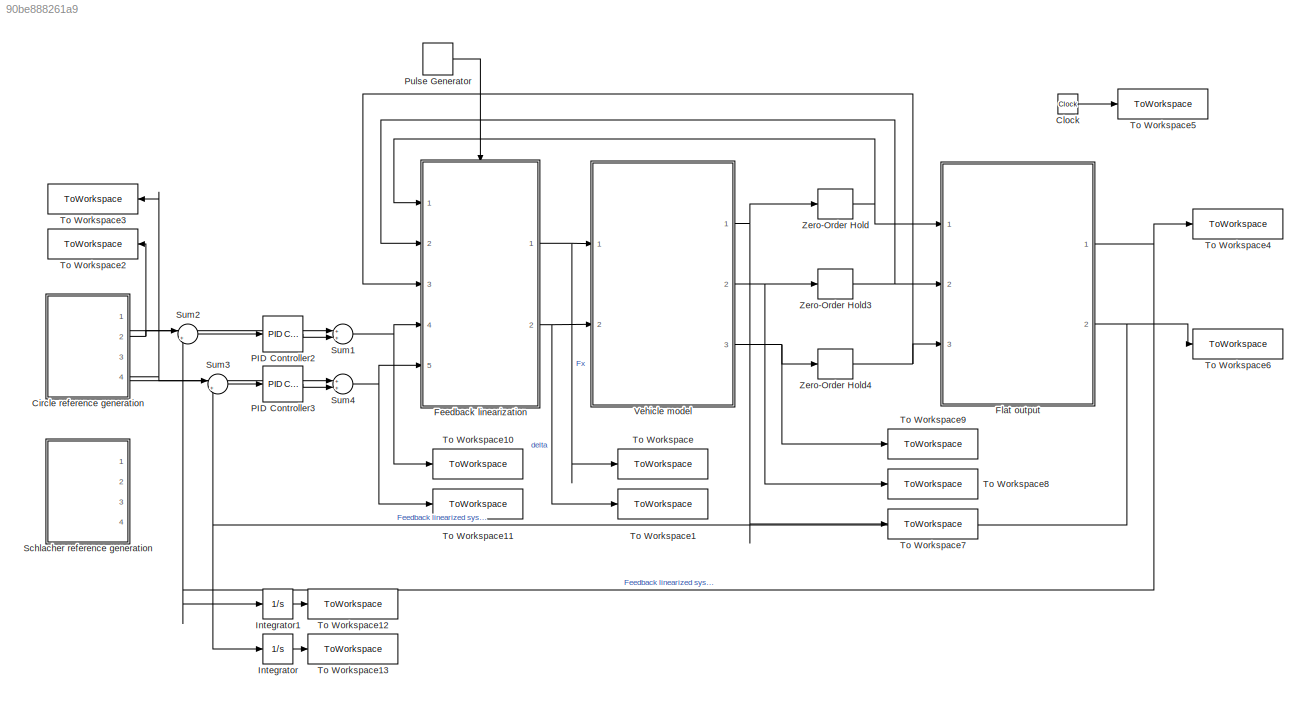
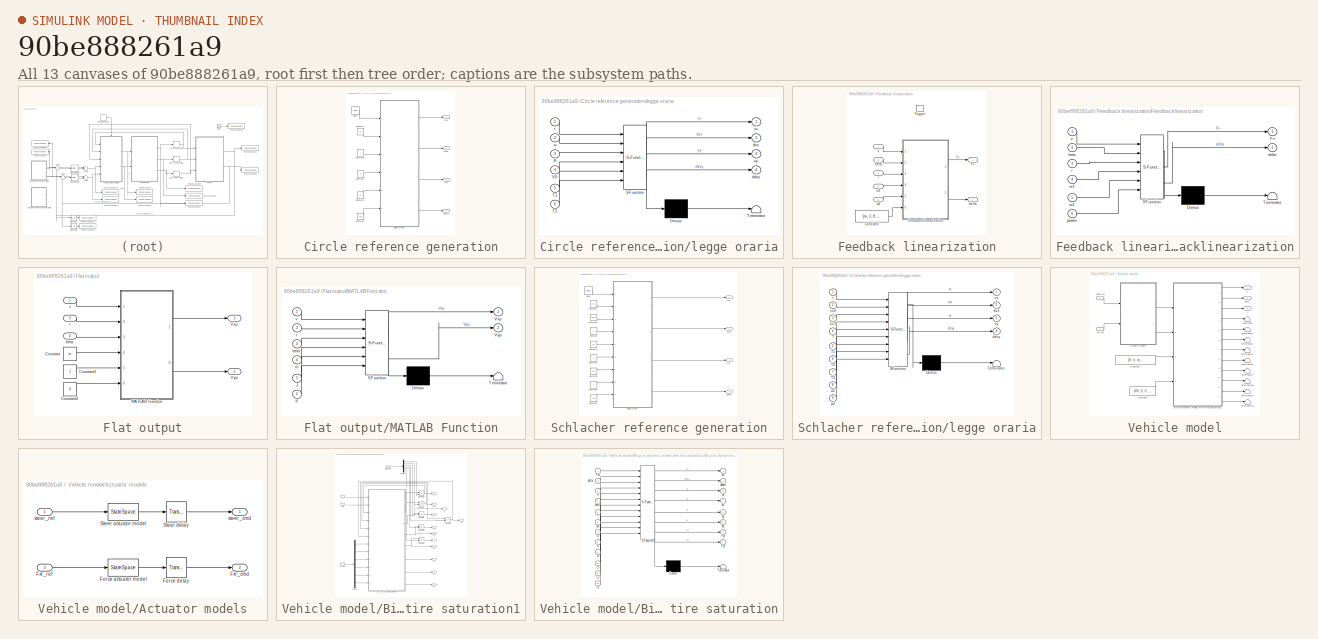
[diagram: thumbnail index - all 13 canvases of the model, root first then tree order]
MODEL slx_90be888261a9
KIND model
CONFIG AbsTol = auto
CONFIG EnableMultiTasking = off
CONFIG FixedStep = 0.001
CONFIG MaxStep = auto
CONFIG MinStep = auto
CONFIG PostLoadFcn = clear all;\n\nlf  = 0.1368;\nlr  = 0.1232;\nm  = 1.9;\nmu = 0.385;\nCf = 50.13;\nCr = 122.05;\nJ = 0.029;\n\nV0 = 1;\nVxp0 = 1;\nVxpf = 5;\nVyp0 = 0;\nVypf = 1;\n\nKp_w1 = 10;\nKi_w1 = 10;\nKp_w2 = 75;\nKi_w2 = 15;\nKd_w2 = 125;\nN_w2 = 100;\n\nTs_sens = 1e-2;\nTs_cont = 1e-3;
CONFIG RelTol = 1e-3
CONFIG SampleTimeConstraint = Unconstrained
CONFIG SolverName = VariableStepAuto
CONFIG StartTime = 0.0
CONFIG StopTime = 50
BLOCK [SubSystem] Circle reference generation
  Ports = [0, 4]
  RequestExecContextInheritance = off
BLOCK [Clock] Circle reference generation/Clock
BLOCK [Constant] Circle reference generation/Constant1
  Value = 5
BLOCK [Constant] Circle reference generation/Constant2
  Value = 50
BLOCK [Constant] Circle reference generation/Constant3
  Value = V0
BLOCK [Constant] Circle reference generation/Constant4
  Value = 0.1
BLOCK [Constant] Circle reference generation/Constant5
BLOCK [Outport] Circle reference generation/ddvyp
  Port = 3
BLOCK [Outport] Circle reference generation/dvxp
BLOCK [SubSystem] Circle reference generation/legge oraria
  ErrorFcn = Stateflow.Translate.translate
  PermitHierarchicalResolution = ExplicitOnly
  Ports = [6, 4]
  RequestExecContextInheritance = off
  SFBlockType = MATLAB Function
  TreatAsAtomicUnit = on
BLOCK [Demux] Circle reference generation/legge oraria/ Demux 
  Outputs = 1
  Ports = [1, 1]
BLOCK [S-Function] Circle reference generation/legge oraria/ SFunction 
  EnableBusSupport = on
  FunctionName = sf_sfun
  PortCounts = [6 5]
  Ports = [6, 5]
  SFcnIsStateOwnerBlock = off
  SFunctionDeploymentMode = off
  Tag = Stateflow S-Function 5
BLOCK [Terminator] Circle reference generation/legge oraria/ Terminator 
BLOCK [Inport] Circle reference generation/legge oraria/R
  Port = 3
BLOCK [Inport] Circle reference generation/legge oraria/T1
  Port = 5
BLOCK [Inport] Circle reference generation/legge oraria/T2
  Port = 6
BLOCK [Inport] Circle reference generation/legge oraria/V0
  Port = 4
BLOCK [Outport] Circle reference generation/legge oraria/ddvy
  Port = 4
BLOCK [Outport] Circle reference generation/legge oraria/dvx
  Port = 2
BLOCK [Inport] Circle reference generation/legge oraria/t
BLOCK [Outport] Circle reference generation/legge oraria/vx
BLOCK [Outport] Circle reference generation/legge oraria/vy
  Port = 3
BLOCK [Inport] Circle reference generation/legge oraria/w
  Port = 2
BLOCK [Outport] Circle reference generation/vxp
  Port = 2
BLOCK [Outport] Circle reference generation/vyp
  Port = 4
BLOCK [Clock] Clock
BLOCK [SubSystem] Feedback linearization
  Ports = [5, 2, 0, 1]
  RequestExecContextInheritance = off
  TreatAsAtomicUnit = on
BLOCK [Constant] Feedback linearization/Constant
  Value = [m, J, lf, lr, Cf, Cr]
BLOCK [SubSystem] Feedback linearization/Feedbacklinearization
  ErrorFcn = Stateflow.Translate.translate
  PermitHierarchicalResolution = ExplicitOnly
  Ports = [6, 2]
  RequestExecContextInheritance = off
  SFBlockType = MATLAB Function
  TreatAsAtomicUnit = on
BLOCK [Demux] Feedback linearization/Feedbacklinearization/ Demux 
  Outputs = 1
  Ports = [1, 1]
BLOCK [S-Function] Feedback linearization/Feedbacklinearization/ SFunction 
  EnableBusSupport = on
  FunctionName = sf_sfun
  PortCounts = [6 3]
  Ports = [6, 3]
  SFcnIsStateOwnerBlock = off
  SFunctionDeploymentMode = off
  Tag = Stateflow S-Function 2
BLOCK [Terminator] Feedback linearization/Feedbacklinearization/ Terminator 
BLOCK [Outport] Feedback linearization/Feedbacklinearization/Fx
BLOCK [Inport] Feedback linearization/Feedbacklinearization/beta
  Port = 2
BLOCK [Outport] Feedback linearization/Feedbacklinearization/delta
  Port = 2
BLOCK [Inport] Feedback linearization/Feedbacklinearization/param
  Port = 6
BLOCK [Inport] Feedback linearization/Feedbacklinearization/r
  Port = 3
BLOCK [Inport] Feedback linearization/Feedbacklinearization/v
BLOCK [Inport] Feedback linearization/Feedbacklinearization/w1
  Port = 4
BLOCK [Inport] Feedback linearization/Feedbacklinearization/w2
  Port = 5
BLOCK [Outport] Feedback linearization/Fx
BLOCK [TriggerPort] Feedback linearization/Trigger
  Ports = []
  StatesWhenEnabling = held
  VariantControl = (inherit)
BLOCK [Inport] Feedback linearization/beta
  Port = 2
BLOCK [Outport] Feedback linearization/delta
  Port = 2
BLOCK [Inport] Feedback linearization/r
  Port = 3
BLOCK [Inport] Feedback linearization/v
BLOCK [Inport] Feedback linearization/w1
  Port = 4
BLOCK [Inport] Feedback linearization/w2
  Port = 5
BLOCK [SubSystem] Flat output
  Ports = [3, 2]
  RequestExecContextInheritance = off
BLOCK [Constant] Flat output/Constant
  Value = m
BLOCK [Constant] Flat output/Constant1
  Value = J
BLOCK [Constant] Flat output/Constant2
  Value = lf
BLOCK [SubSystem] Flat output/MATLAB Function
  ErrorFcn = Stateflow.Translate.translate
  PermitHierarchicalResolution = ExplicitOnly
  Ports = [6, 2]
  RequestExecContextInheritance = off
  SFBlockType = MATLAB Function
  TreatAsAtomicUnit = on
BLOCK [Demux] Flat output/MATLAB Function/ Demux 
  Outputs = 1
  Ports = [1, 1]
BLOCK [S-Function] Flat output/MATLAB Function/ SFunction 
  EnableBusSupport = on
  FunctionName = sf_sfun
  PortCounts = [6 3]
  Ports = [6, 3]
  SFcnIsStateOwnerBlock = off
  SFunctionDeploymentMode = off
  Tag = Stateflow S-Function 4
BLOCK [Terminator] Flat output/MATLAB Function/ Terminator 
BLOCK [Inport] Flat output/MATLAB Function/J
  Port = 5
BLOCK [Outport] Flat output/MATLAB Function/Vxp
BLOCK [Outport] Flat output/MATLAB Function/Vyp
  Port = 2
BLOCK [Inport] Flat output/MATLAB Function/beta
  Port = 3
BLOCK [Inport] Flat output/MATLAB Function/lf
  Port = 6
BLOCK [Inport] Flat output/MATLAB Function/m
  Port = 4
BLOCK [Inport] Flat output/MATLAB Function/r
  Port = 2
BLOCK [Inport] Flat output/MATLAB Function/v
BLOCK [Outport] Flat output/Vxp
BLOCK [Outport] Flat output/Vyp
  Port = 2
BLOCK [Inport] Flat output/beta
  Port = 2
BLOCK [Inport] Flat output/r
  Port = 3
BLOCK [Inport] Flat output/v
BLOCK [Integrator] Integrator
  Ports = [1, 1]
BLOCK [Integrator] Integrator1
  Ports = [1, 1]
BLOCK [Reference] PID Controller2  REF=pid_lib/PID Controller
  Ports = [1, 1]
  SourceBlock = pid_lib/PID Controller
  SourceProductBaseCode = SL
  SourceType = PID 1dof
BLOCK [Reference] PID Controller3  REF=pid_lib/PID Controller
  Ports = [1, 1]
  SourceBlock = pid_lib/PID Controller
  SourceProductBaseCode = SL
  SourceType = PID 1dof
BLOCK [DiscretePulseGenerator] Pulse Generator
  Period = Ts_cont
  Ports = [0, 1]
  PulseType = Time based
  PulseWidth = 50
BLOCK [SubSystem] Schlacher reference generation
  Ports = [0, 4]
  RequestExecContextInheritance = off
BLOCK [Clock] Schlacher reference generation/Clock
BLOCK [Constant] Schlacher reference generation/Constant
  Value = 5
BLOCK [Constant] Schlacher reference generation/Constant1
  Value = 1.5
BLOCK [Constant] Schlacher reference generation/Constant2
  Value = 3
BLOCK [Constant] Schlacher reference generation/Constant3
  Value = 4.5
BLOCK [Constant] Schlacher reference generation/Constant4
  Value = V0
BLOCK [Constant] Schlacher reference generation/Constant5
  Value = V0+2
BLOCK [Constant] Schlacher reference generation/Constant6
  Value = 2
BLOCK [Constant] Schlacher reference generation/Constant7
  Value = -2.5
BLOCK [Outport] Schlacher reference generation/ddvyp
  Port = 3
BLOCK [Outport] Schlacher reference generation/dvxp
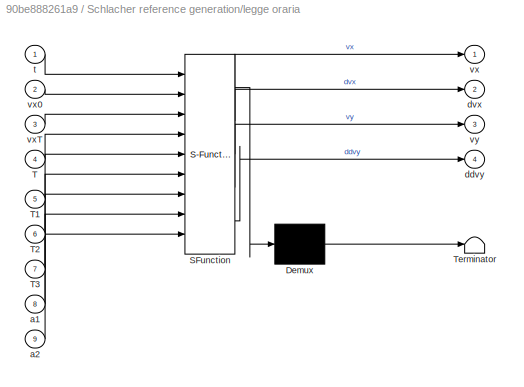
BLOCK [SubSystem] Schlacher reference generation/legge oraria
  ErrorFcn = Stateflow.Translate.translate
  PermitHierarchicalResolution = ExplicitOnly
  Ports = [9, 4]
  RequestExecContextInheritance = off
  SFBlockType = MATLAB Function
  TreatAsAtomicUnit = on
BLOCK [Demux] Schlacher reference generation/legge oraria/ Demux 
  Outputs = 1
  Ports = [1, 1]
BLOCK [S-Function] Schlacher reference generation/legge oraria/ SFunction 
  EnableBusSupport = on
  FunctionName = sf_sfun
  PortCounts = [9 5]
  Ports = [9, 5]
  SFcnIsStateOwnerBlock = off
  SFunctionDeploymentMode = off
  Tag = Stateflow S-Function 3
BLOCK [Terminator] Schlacher reference generation/legge oraria/ Terminator 
BLOCK [Inport] Schlacher reference generation/legge oraria/T
  Port = 4
BLOCK [Inport] Schlacher reference generation/legge oraria/T1
  Port = 5
BLOCK [Inport] Schlacher reference generation/legge oraria/T2
  Port = 6
BLOCK [Inport] Schlacher reference generation/legge oraria/T3
  Port = 7
BLOCK [Inport] Schlacher reference generation/legge oraria/a1
  Port = 8
BLOCK [Inport] Schlacher reference generation/legge oraria/a2
  Port = 9
BLOCK [Outport] Schlacher reference generation/legge oraria/ddvy
  Port = 4
BLOCK [Outport] Schlacher reference generation/legge oraria/dvx
  Port = 2
BLOCK [Inport] Schlacher reference generation/legge oraria/t
BLOCK [Outport] Schlacher reference generation/legge oraria/vx
BLOCK [Inport] Schlacher reference generation/legge oraria/vx0
  Port = 2
BLOCK [Inport] Schlacher reference generation/legge oraria/vxT
  Port = 3
BLOCK [Outport] Schlacher reference generation/legge oraria/vy
  Port = 3
BLOCK [Outport] Schlacher reference generation/vxp
  Port = 2
BLOCK [Outport] Schlacher reference generation/vyp
  Port = 4
BLOCK [Sum] Sum1
  Inputs = ++|
  Ports = [2, 1]
BLOCK [Sum] Sum2
  Inputs = |+-
  Ports = [2, 1]
BLOCK [Sum] Sum3
  Inputs = |+-
  Ports = [2, 1]
BLOCK [Sum] Sum4
  Inputs = ++|
  Ports = [2, 1]
BLOCK [ToWorkspace] To Workspace
  FixptAsFi = on
  MaxDataPoints = inf
  Ports = [1]
  SampleTime = 0.001
  Save2DSignal = 2-D array (concatenate along first dimension)
  VariableName = Fx
BLOCK [ToWorkspace] To Workspace1
  FixptAsFi = on
  MaxDataPoints = inf
  Ports = [1]
  SampleTime = 0.001
  Save2DSignal = 2-D array (concatenate along first dimension)
  VariableName = delta
BLOCK [ToWorkspace] To Workspace10
  FixptAsFi = on
  MaxDataPoints = inf
  Ports = [1]
  SampleTime = 0.001
  Save2DSignal = 2-D array (concatenate along first dimension)
  VariableName = w1
BLOCK [ToWorkspace] To Workspace11
  FixptAsFi = on
  MaxDataPoints = inf
  Ports = [1]
  SampleTime = 0.001
  Save2DSignal = 2-D array (concatenate along first dimension)
  VariableName = w2
BLOCK [ToWorkspace] To Workspace12
  FixptAsFi = on
  MaxDataPoints = inf
  Ports = [1]
  SampleTime = 0.001
  Save2DSignal = 2-D array (concatenate along first dimension)
  VariableName = xp
BLOCK [ToWorkspace] To Workspace13
  FixptAsFi = on
  MaxDataPoints = inf
  Ports = [1]
  SampleTime = 0.001
  Save2DSignal = 2-D array (concatenate along first dimension)
  VariableName = yp
BLOCK [ToWorkspace] To Workspace2
  FixptAsFi = on
  MaxDataPoints = inf
  Ports = [1]
  SampleTime = 0.001
  Save2DSignal = 2-D array (concatenate along first dimension)
  VariableName = Vxp_ref
BLOCK [ToWorkspace] To Workspace3
  FixptAsFi = on
  MaxDataPoints = inf
  Ports = [1]
  SampleTime = 0.001
  Save2DSignal = 2-D array (concatenate along first dimension)
  VariableName = Vyp_ref
BLOCK [ToWorkspace] To Workspace4
  FixptAsFi = on
  MaxDataPoints = inf
  Ports = [1]
  SampleTime = 0.001
  Save2DSignal = 2-D array (concatenate along first dimension)
  VariableName = Vxp
BLOCK [ToWorkspace] To Workspace5
  FixptAsFi = on
  MaxDataPoints = inf
  Ports = [1]
  SampleTime = 0.001
  Save2DSignal = 2-D array (concatenate along first dimension)
  VariableName = t
BLOCK [ToWorkspace] To Workspace6
  FixptAsFi = on
  MaxDataPoints = inf
  Ports = [1]
  SampleTime = 0.001
  Save2DSignal = 2-D array (concatenate along first dimension)
  VariableName = Vyp
BLOCK [ToWorkspace] To Workspace7
  FixptAsFi = on
  MaxDataPoints = inf
  Ports = [1]
  SampleTime = 0.001
  Save2DSignal = 2-D array (concatenate along first dimension)
  VariableName = v
BLOCK [ToWorkspace] To Workspace8
  FixptAsFi = on
  MaxDataPoints = inf
  Ports = [1]
  SampleTime = 0.001
  Save2DSignal = 2-D array (concatenate along first dimension)
  VariableName = beta
BLOCK [ToWorkspace] To Workspace9
  FixptAsFi = on
  MaxDataPoints = inf
  Ports = [1]
  SampleTime = 0.001
  Save2DSignal = 2-D array (concatenate along first dimension)
  VariableName = r
BLOCK [SubSystem] Vehicle model
  Ports = [2, 3]
  RequestExecContextInheritance = off
BLOCK [SubSystem] Vehicle model/Actuator models
  Ports = [2, 2]
  RequestExecContextInheritance = off
BLOCK [StateSpace] Vehicle model/Actuator models/Force actuator model
  A = [0, 1; -wn_force^2, -2*csi_force*wn_force]
  B = [0; mu_force*wn_force^2]
  C = [1, 0]
  D = 0
  InitialCondition = [force_initial, 0]
  Ports = [1, 1]
BLOCK [TransportDelay] Vehicle model/Actuator models/Force delay
  DelayTime = tau_force
  InitialOutput = force_initial
  Ports = [1, 1]
BLOCK [Outport] Vehicle model/Actuator models/Fxr_cmd
  Port = 2
BLOCK [Inport] Vehicle model/Actuator models/Fxr_ref
  Port = 2
BLOCK [StateSpace] Vehicle model/Actuator models/Steer actuator model
  A = [0, 1; -wn_steer^2, -2*csi_steer*wn_steer]
  B = [0; mu_steer*wn_steer^2]
  C = [1, 0]
  D = 0
  InitialCondition = [steer_initial, 0]
  Ports = [1, 1]
BLOCK [TransportDelay] Vehicle model/Actuator models/Steer delay
  DelayTime = tau_steer
  InitialOutput = steer_initial
  Ports = [1, 1]
BLOCK [Outport] Vehicle model/Actuator models/steer_cmd
BLOCK [Inport] Vehicle model/Actuator models/steer_ref
BLOCK [SubSystem] Vehicle model/Bicycle dynamic model with tire saturation1
  Ports = [4, 12]
  RequestExecContextInheritance = off
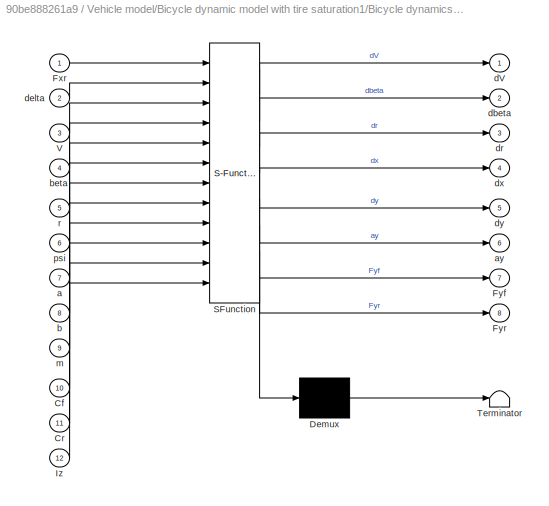
BLOCK [SubSystem] Vehicle model/Bicycle dynamic model with tire saturation1/Bicycle dynamics tire saturation
  ErrorFcn = Stateflow.Translate.translate
  PermitHierarchicalResolution = ExplicitOnly
  Ports = [12, 8]
  RequestExecContextInheritance = off
  SFBlockType = MATLAB Function
  TreatAsAtomicUnit = on
BLOCK [Demux] Vehicle model/Bicycle dynamic model with tire saturation1/Bicycle dynamics tire saturation/ Demux 
  Outputs = 1
  Ports = [1, 1]
BLOCK [S-Function] Vehicle model/Bicycle dynamic model with tire saturation1/Bicycle dynamics tire saturation/ SFunction 
  EnableBusSupport = on
  FunctionName = sf_sfun
  PortCounts = [12 9]
  Ports = [12, 9]
  SFcnIsStateOwnerBlock = off
  SFunctionDeploymentMode = off
  Tag = Stateflow S-Function 1
BLOCK [Terminator] Vehicle model/Bicycle dynamic model with tire saturation1/Bicycle dynamics tire saturation/ Terminator 
BLOCK [Inport] Vehicle model/Bicycle dynamic model with tire saturation1/Bicycle dynamics tire saturation/Cf
  Port = 10
BLOCK [Inport] Vehicle model/Bicycle dynamic model with tire saturation1/Bicycle dynamics tire saturation/Cr
  Port = 11
BLOCK [Inport] Vehicle model/Bicycle dynamic model with tire saturation1/Bicycle dynamics tire saturation/Fxr
BLOCK [Outport] Vehicle model/Bicycle dynamic model with tire saturation1/Bicycle dynamics tire saturation/Fyf
  Port = 7
BLOCK [Outport] Vehicle model/Bicycle dynamic model with tire saturation1/Bicycle dynamics tire saturation/Fyr
  Port = 8
BLOCK [Inport] Vehicle model/Bicycle dynamic model with tire saturation1/Bicycle dynamics tire saturation/Iz
  Port = 12
BLOCK [Inport] Vehicle model/Bicycle dynamic model with tire saturation1/Bicycle dynamics tire saturation/V
  Port = 3
BLOCK [Inport] Vehicle model/Bicycle dynamic model with tire saturation1/Bicycle dynamics tire saturation/a
  Port = 7
BLOCK [Outport] Vehicle model/Bicycle dynamic model with tire saturation1/Bicycle dynamics tire saturation/ay
  Port = 6
BLOCK [Inport] Vehicle model/Bicycle dynamic model with tire saturation1/Bicycle dynamics tire saturation/b
  Port = 8
BLOCK [Inport] Vehicle model/Bicycle dynamic model with tire saturation1/Bicycle dynamics tire saturation/beta
  Port = 4
BLOCK [Outport] Vehicle model/Bicycle dynamic model with tire saturation1/Bicycle dynamics tire saturation/dV
BLOCK [Outport] Vehicle model/Bicycle dynamic model with tire saturation1/Bicycle dynamics tire saturation/dbeta
  Port = 2
BLOCK [Inport] Vehicle model/Bicycle dynamic model with tire saturation1/Bicycle dynamics tire saturation/delta
  Port = 2
BLOCK [Outport] Vehicle model/Bicycle dynamic model with tire saturation1/Bicycle dynamics tire saturation/dr
  Port = 3
  VectorParamsAs1DForOutWhenUnconnected = off
BLOCK [Outport] Vehicle model/Bicycle dynamic model with tire saturation1/Bicycle dynamics tire saturation/dx
  Port = 4
BLOCK [Outport] Vehicle model/Bicycle dynamic model with tire saturation1/Bicycle dynamics tire saturation/dy
  Port = 5
BLOCK [Inport] Vehicle model/Bicycle dynamic model with tire saturation1/Bicycle dynamics tire saturation/m
  Port = 9
BLOCK [Inport] Vehicle model/Bicycle dynamic model with tire saturation1/Bicycle dynamics tire saturation/psi
  Port = 6
BLOCK [Inport] Vehicle model/Bicycle dynamic model with tire saturation1/Bicycle dynamics tire saturation/r
  Port = 5
BLOCK [Demux] Vehicle model/Bicycle dynamic model with tire saturation1/Demux
  Outputs = 6
  Ports = [1, 6]
BLOCK [Demux] Vehicle model/Bicycle dynamic model with tire saturation1/Demux2
  Outputs = 6
  Ports = [1, 6]
BLOCK [Inport] Vehicle model/Bicycle dynamic model with tire saturation1/Fxr
  Port = 2
BLOCK [Outport] Vehicle model/Bicycle dynamic model with tire saturation1/Fyf
  Port = 8
BLOCK [Outport] Vehicle model/Bicycle dynamic model with tire saturation1/Fyr
  Port = 9
BLOCK [Integrator] Vehicle model/Bicycle dynamic model with tire saturation1/Integrator
  InitialConditionSource = external
  Ports = [2, 1]
BLOCK [Integrator] Vehicle model/Bicycle dynamic model with tire saturation1/Integrator1
  InitialConditionSource = external
  Ports = [2, 1]
BLOCK [Integrator] Vehicle model/Bicycle dynamic model with tire saturation1/Integrator2
  InitialConditionSource = external
  Ports = [2, 1]
BLOCK [Integrator] Vehicle model/Bicycle dynamic model with tire saturation1/Integrator3
  InitialConditionSource = external
  Ports = [2, 1]
BLOCK [Integrator] Vehicle model/Bicycle dynamic model with tire saturation1/Integrator4
  InitialConditionSource = external
  Ports = [2, 1]
BLOCK [Integrator] Vehicle model/Bicycle dynamic model with tire saturation1/Integrator5
  InitialConditionSource = external
  Ports = [2, 1]
BLOCK [Outport] Vehicle model/Bicycle dynamic model with tire saturation1/V
BLOCK [Outport] Vehicle model/Bicycle dynamic model with tire saturation1/ay
  Port = 7
BLOCK [Outport] Vehicle model/Bicycle dynamic model with tire saturation1/beta
  Port = 2
BLOCK [Inport] Vehicle model/Bicycle dynamic model with tire saturation1/car_param
  Port = 3
BLOCK [Inport] Vehicle model/Bicycle dynamic model with tire saturation1/delta
BLOCK [Outport] Vehicle model/Bicycle dynamic model with tire saturation1/dr
  Port = 12
BLOCK [Outport] Vehicle model/Bicycle dynamic model with tire saturation1/dx
  Port = 10
BLOCK [Outport] Vehicle model/Bicycle dynamic model with tire saturation1/dy
  Port = 11
BLOCK [Inport] Vehicle model/Bicycle dynamic model with tire saturation1/initial_state 
  Port = 4
BLOCK [Outport] Vehicle model/Bicycle dynamic model with tire saturation1/psi
  Port = 6
BLOCK [Outport] Vehicle model/Bicycle dynamic model with tire saturation1/r
  Port = 3
BLOCK [Outport] Vehicle model/Bicycle dynamic model with tire saturation1/x
  Port = 4
BLOCK [Outport] Vehicle model/Bicycle dynamic model with tire saturation1/y
  Port = 5
BLOCK [Constant] Vehicle model/Constant1
  Value = [lf, lr, m, Cf, Cr, J]
BLOCK [Constant] Vehicle model/Constant3
  Value = [V0, 0, 0, 0, 0, 0]
BLOCK [Inport] Vehicle model/Fxr_ref
BLOCK [Terminator] Vehicle model/Terminator
BLOCK [Terminator] Vehicle model/Terminator1
BLOCK [Terminator] Vehicle model/Terminator10
BLOCK [Terminator] Vehicle model/Terminator2
BLOCK [Terminator] Vehicle model/Terminator3
BLOCK [Terminator] Vehicle model/Terminator6
BLOCK [Terminator] Vehicle model/Terminator7
BLOCK [Terminator] Vehicle model/Terminator8
BLOCK [Terminator] Vehicle model/Terminator9
BLOCK [Outport] Vehicle model/V
BLOCK [Outport] Vehicle model/beta
  Port = 2
BLOCK [Outport] Vehicle model/r
  Port = 3
BLOCK [Inport] Vehicle model/steer_ref
  Port = 2
BLOCK [ZeroOrderHold] Zero-Order Hold
  SampleTime = Ts_sens
BLOCK [ZeroOrderHold] Zero-Order Hold3
  SampleTime = Ts_sens
BLOCK [ZeroOrderHold] Zero-Order Hold4
  SampleTime = Ts_sens
LINE Circle reference generation/Clock:1 -> Circle reference generation/legge oraria:1
LINE Circle reference generation/Constant1:1 -> Circle reference generation/legge oraria:5
LINE Circle reference generation/Constant2:1 -> Circle reference generation/legge oraria:6
LINE Circle reference generation/Constant3:1 -> Circle reference generation/legge oraria:4
LINE Circle reference generation/Constant4:1 -> Circle reference generation/legge oraria:2
LINE Circle reference generation/Constant5:1 -> Circle reference generation/legge oraria:3
LINE Circle reference generation/legge oraria:1 -> Circle reference generation/vxp:1
LINE Circle reference generation/legge oraria:2 -> Circle reference generation/dvxp:1
LINE Circle reference generation/legge oraria:3 -> Circle reference generation/vyp:1
LINE Circle reference generation/legge oraria:4 -> Circle reference generation/ddvyp:1
LINE Circle reference generation:1 -> Sum1:1
NET Circle reference generation:2 -> Sum2:1, To Workspace2:1
LINE Circle reference generation:3 -> Sum4:1
NET Circle reference generation:4 -> Sum3:1, To Workspace3:1
LINE Clock:1 -> To Workspace5:1
LINE Feedback linearization/Constant:1 -> Feedback linearization/Feedbacklinearization:6
LINE Feedback linearization/Feedbacklinearization:1 -> Feedback linearization/Fx:1
LINE Feedback linearization/Feedbacklinearization:2 -> Feedback linearization/delta:1
LINE Feedback linearization/beta:1 -> Feedback linearization/Feedbacklinearization:2
LINE Feedback linearization/r:1 -> Feedback linearization/Feedbacklinearization:3
LINE Feedback linearization/v:1 -> Feedback linearization/Feedbacklinearization:1
LINE Feedback linearization/w1:1 -> Feedback linearization/Feedbacklinearization:4
LINE Feedback linearization/w2:1 -> Feedback linearization/Feedbacklinearization:5
NET Feedback linearization:1 -> To Workspace:1, Vehicle model:1
NET Feedback linearization:2 -> To Workspace1:1, Vehicle model:2
LINE Flat output/Constant1:1 -> Flat output/MATLAB Function:5
LINE Flat output/Constant2:1 -> Flat output/MATLAB Function:6
LINE Flat output/Constant:1 -> Flat output/MATLAB Function:4
LINE Flat output/MATLAB Function:1 -> Flat output/Vxp:1
LINE Flat output/MATLAB Function:2 -> Flat output/Vyp:1
LINE Flat output/beta:1 -> Flat output/MATLAB Function:3
LINE Flat output/r:1 -> Flat output/MATLAB Function:2
LINE Flat output/v:1 -> Flat output/MATLAB Function:1
NET Flat output:1 -> Integrator1:1, Sum2:2, To Workspace4:1
NET Flat output:2 -> Integrator:1, Sum3:2, To Workspace6:1
LINE Integrator1:1 -> To Workspace12:1
LINE Integrator:1 -> To Workspace13:1
LINE PID Controller2:1 -> Sum1:2
LINE PID Controller3:1 -> Sum4:2
LINE Pulse Generator:1 -> Feedback linearization:trigger
LINE Schlacher reference generation/Clock:1 -> Schlacher reference generation/legge oraria:1
LINE Schlacher reference generation/Constant1:1 -> Schlacher reference generation/legge oraria:5
LINE Schlacher reference generation/Constant2:1 -> Schlacher reference generation/legge oraria:6
LINE Schlacher reference generation/Constant3:1 -> Schlacher reference generation/legge oraria:7
LINE Schlacher reference generation/Constant4:1 -> Schlacher reference generation/legge oraria:2
LINE Schlacher reference generation/Constant5:1 -> Schlacher reference generation/legge oraria:3
LINE Schlacher reference generation/Constant6:1 -> Schlacher reference generation/legge oraria:8
LINE Schlacher reference generation/Constant7:1 -> Schlacher reference generation/legge oraria:9
LINE Schlacher reference generation/Constant:1 -> Schlacher reference generation/legge oraria:4
LINE Schlacher reference generation/legge oraria:1 -> Schlacher reference generation/vxp:1
LINE Schlacher reference generation/legge oraria:2 -> Schlacher reference generation/dvxp:1
LINE Schlacher reference generation/legge oraria:3 -> Schlacher reference generation/vyp:1
LINE Schlacher reference generation/legge oraria:4 -> Schlacher reference generation/ddvyp:1
NET Sum1:1 -> Feedback linearization:4, To Workspace10:1
LINE Sum2:1 -> PID Controller2:1
LINE Sum3:1 -> PID Controller3:1
NET Sum4:1 -> Feedback linearization:5, To Workspace11:1
LINE Vehicle model/Actuator models/Force actuator model:1 -> Vehicle model/Actuator models/Force delay:1
LINE Vehicle model/Actuator models/Force delay:1 -> Vehicle model/Actuator models/Fxr_cmd:1
LINE Vehicle model/Actuator models/Fxr_ref:1 -> Vehicle model/Actuator models/Force actuator model:1
LINE Vehicle model/Actuator models/Steer actuator model:1 -> Vehicle model/Actuator models/Steer delay:1
LINE Vehicle model/Actuator models/Steer delay:1 -> Vehicle model/Actuator models/steer_cmd:1
LINE Vehicle model/Actuator models/steer_ref:1 -> Vehicle model/Actuator models/Steer actuator model:1
LINE Vehicle model/Actuator models:1 -> Vehicle model/Bicycle dynamic model with tire saturation1:1
LINE Vehicle model/Actuator models:2 -> Vehicle model/Bicycle dynamic model with tire saturation1:2
LINE Vehicle model/Bicycle dynamic model with tire saturation1/Bicycle dynamics tire saturation:1 -> Vehicle model/Bicycle dynamic model with tire saturation1/Integrator5:1
LINE Vehicle model/Bicycle dynamic model with tire saturation1/Bicycle dynamics tire saturation:2 -> Vehicle model/Bicycle dynamic model with tire saturation1/Integrator:1
NET Vehicle model/Bicycle dynamic model with tire saturation1/Bicycle dynamics tire saturation:3 -> Vehicle model/Bicycle dynamic model with tire saturation1/Integrator1:1, Vehicle model/Bicycle dynamic model with tire saturation1/dr:1
NET Vehicle model/Bicycle dynamic model with tire saturation1/Bicycle dynamics tire saturation:4 -> Vehicle model/Bicycle dynamic model with tire saturation1/Integrator3:1, Vehicle model/Bicycle dynamic model with tire saturation1/dx:1
NET Vehicle model/Bicycle dynamic model with tire saturation1/Bicycle dynamics tire saturation:5 -> Vehicle model/Bicycle dynamic model with tire saturation1/Integrator4:1, Vehicle model/Bicycle dynamic model with tire saturation1/dy:1
LINE Vehicle model/Bicycle dynamic model with tire saturation1/Bicycle dynamics tire saturation:6 -> Vehicle model/Bicycle dynamic model with tire saturation1/ay:1
LINE Vehicle model/Bicycle dynamic model with tire saturation1/Bicycle dynamics tire saturation:7 -> Vehicle model/Bicycle dynamic model with tire saturation1/Fyf:1
LINE Vehicle model/Bicycle dynamic model with tire saturation1/Bicycle dynamics tire saturation:8 -> Vehicle model/Bicycle dynamic model with tire saturation1/Fyr:1
LINE Vehicle model/Bicycle dynamic model with tire saturation1/Demux2:1 -> Vehicle model/Bicycle dynamic model with tire saturation1/Integrator5:2
LINE Vehicle model/Bicycle dynamic model with tire saturation1/Demux2:2 -> Vehicle model/Bicycle dynamic model with tire saturation1/Integrator:2
LINE Vehicle model/Bicycle dynamic model with tire saturation1/Demux2:3 -> Vehicle model/Bicycle dynamic model with tire saturation1/Integrator1:2
LINE Vehicle model/Bicycle dynamic model with tire saturation1/Demux2:4 -> Vehicle model/Bicycle dynamic model with tire saturation1/Integrator2:2
LINE Vehicle model/Bicycle dynamic model with tire saturation1/Demux2:5 -> Vehicle model/Bicycle dynamic model with tire saturation1/Integrator3:2
LINE Vehicle model/Bicycle dynamic model with tire saturation1/Demux2:6 -> Vehicle model/Bicycle dynamic model with tire saturation1/Integrator4:2
LINE Vehicle model/Bicycle dynamic model with tire saturation1/Demux:1 -> Vehicle model/Bicycle dynamic model with tire saturation1/Bicycle dynamics tire saturation:7
LINE Vehicle model/Bicycle dynamic model with tire saturation1/Demux:2 -> Vehicle model/Bicycle dynamic model with tire saturation1/Bicycle dynamics tire saturation:8
LINE Vehicle model/Bicycle dynamic model with tire saturation1/Demux:3 -> Vehicle model/Bicycle dynamic model with tire saturation1/Bicycle dynamics tire saturation:9
LINE Vehicle model/Bicycle dynamic model with tire saturation1/Demux:4 -> Vehicle model/Bicycle dynamic model with tire saturation1/Bicycle dynamics tire saturation:10
LINE Vehicle model/Bicycle dynamic model with tire saturation1/Demux:5 -> Vehicle model/Bicycle dynamic model with tire saturation1/Bicycle dynamics tire saturation:11
LINE Vehicle model/Bicycle dynamic model with tire saturation1/Demux:6 -> Vehicle model/Bicycle dynamic model with tire saturation1/Bicycle dynamics tire saturation:12
LINE Vehicle model/Bicycle dynamic model with tire saturation1/Fxr:1 -> Vehicle model/Bicycle dynamic model with tire saturation1/Bicycle dynamics tire saturation:1
NET Vehicle model/Bicycle dynamic model with tire saturation1/Integrator1:1 -> Vehicle model/Bicycle dynamic model with tire saturation1/Bicycle dynamics tire saturation:5, Vehicle model/Bicycle dynamic model with tire saturation1/Integrator2:1, Vehicle model/Bicycle dynamic model with tire saturation1/r:1
NET Vehicle model/Bicycle dynamic model with tire saturation1/Integrator2:1 -> Vehicle model/Bicycle dynamic model with tire saturation1/Bicycle dynamics tire saturation:6, Vehicle model/Bicycle dynamic model with tire saturation1/psi:1
LINE Vehicle model/Bicycle dynamic model with tire saturation1/Integrator3:1 -> Vehicle model/Bicycle dynamic model with tire saturation1/x:1
LINE Vehicle model/Bicycle dynamic model with tire saturation1/Integrator4:1 -> Vehicle model/Bicycle dynamic model with tire saturation1/y:1
NET Vehicle model/Bicycle dynamic model with tire saturation1/Integrator5:1 -> Vehicle model/Bicycle dynamic model with tire saturation1/Bicycle dynamics tire saturation:3, Vehicle model/Bicycle dynamic model with tire saturation1/V:1
NET Vehicle model/Bicycle dynamic model with tire saturation1/Integrator:1 -> Vehicle model/Bicycle dynamic model with tire saturation1/Bicycle dynamics tire saturation:4, Vehicle model/Bicycle dynamic model with tire saturation1/beta:1
LINE Vehicle model/Bicycle dynamic model with tire saturation1/car_param:1 -> Vehicle model/Bicycle dynamic model with tire saturation1/Demux:1
LINE Vehicle model/Bicycle dynamic model with tire saturation1/delta:1 -> Vehicle model/Bicycle dynamic model with tire saturation1/Bicycle dynamics tire saturation:2
LINE Vehicle model/Bicycle dynamic model with tire saturation1/initial_state :1 -> Vehicle model/Bicycle dynamic model with tire saturation1/Demux2:1
LINE Vehicle model/Bicycle dynamic model with tire saturation1:1 -> Vehicle model/V:1
LINE Vehicle model/Bicycle dynamic model with tire saturation1:10 -> Vehicle model/Terminator8:1
LINE Vehicle model/Bicycle dynamic model with tire saturation1:11 -> Vehicle model/Terminator9:1
LINE Vehicle model/Bicycle dynamic model with tire saturation1:12 -> Vehicle model/Terminator10:1
LINE Vehicle model/Bicycle dynamic model with tire saturation1:2 -> Vehicle model/beta:1
LINE Vehicle model/Bicycle dynamic model with tire saturation1:3 -> Vehicle model/r:1
LINE Vehicle model/Bicycle dynamic model with tire saturation1:4 -> Vehicle model/Terminator:1
LINE Vehicle model/Bicycle dynamic model with tire saturation1:5 -> Vehicle model/Terminator1:1
LINE Vehicle model/Bicycle dynamic model with tire saturation1:6 -> Vehicle model/Terminator2:1
LINE Vehicle model/Bicycle dynamic model with tire saturation1:7 -> Vehicle model/Terminator3:1
LINE Vehicle model/Bicycle dynamic model with tire saturation1:8 -> Vehicle model/Terminator6:1
LINE Vehicle model/Bicycle dynamic model with tire saturation1:9 -> Vehicle model/Terminator7:1
LINE Vehicle model/Constant1:1 -> Vehicle model/Bicycle dynamic model with tire saturation1:3
LINE Vehicle model/Constant3:1 -> Vehicle model/Bicycle dynamic model with tire saturation1:4
LINE Vehicle model/Fxr_ref:1 -> Vehicle model/Actuator models:2
LINE Vehicle model/steer_ref:1 -> Vehicle model/Actuator models:1
NET Vehicle model:1 -> To Workspace7:1, Zero-Order Hold:1
NET Vehicle model:2 -> To Workspace8:1, Zero-Order Hold3:1
NET Vehicle model:3 -> To Workspace9:1, Zero-Order Hold4:1
NET Zero-Order Hold3:1 -> Feedback linearization:2, Flat output:2
NET Zero-Order Hold4:1 -> Feedback linearization:3, Flat output:3
NET Zero-Order Hold:1 -> Feedback linearization:1, Flat output:1
note: NET lines group one-source signal fan-out (src -> all destinations, sorted); 1:1 wires keep LINE
CHART Flat output/MATLAB Function states=1 transitions=1
  STATE_LABEL 'eML_blk_kernel()'
  STATE_LABEL 'SCRIPT:\nfunction [Vxp,Vyp] = z_tranform(v,r,beta,m,J,lf)\n\nVxp = v*cos(beta);\nVyp = v*sin(beta)-J/(m*lf)*r;\n'
CHART Circle reference generation/legge oraria states=1 transitions=1
  STATE_LABEL 'eML_blk_kernel()'
  STATE_LABEL 'SCRIPT:\nfunction [vx,dvx,vy,ddvy] = circle_ref(t,w,R,V0,T1,T2)\n\nif (t<=T1)\n    vx   = V0;\n    dvx  = 0;\n    vy   = 0;\n    ddvy = 0;\nelseif (t<=T2)\n    vx   = V0-w*R*sin(w*(t-T1));\n    dvx  = -w^2*R*cos(w*(t-T1));\n    vy   = w*R*sin(w*(t-T1));\n    ddvy = -w^3*R*cos(w*(t-T1));\nelse\n    vx   = 0;\n    dvx  = 0;\n    vy   = 0;\n    ddvy = 0;\nend'
CHART Vehicle model/Bicycle dynamic
model with tire saturation1/Bicycle dynamics tire saturation states=1 transitions=1
  STATE_LABEL 'eML_blk_kernel()'
  STATE_LABEL 'SCRIPT:\nfunction [dV,dbeta,dr,dx,dy,ay,Fyf,Fyr]  = bicycle_dynamics(Fxr, delta, V, beta, r, psi, a, b, m, Cf, Cr, Iz)\n\nif (abs(V*cos(beta))<=0.01)\n    Fyf = 0;\n    Fyr = 0;\nelse\n    Fyf = -Cf*((V*sin(beta)+a*r)/(V*cos(beta))-delta);\n    Fyr = -Cr*(V*sin(beta)-b*r)/(V*cos(beta));\nend\n\ndV    = (Fyf*(sin(beta)-cos(beta)*delta)+Fyr*sin(beta)+Fxr*cos(beta))/m;\ndbeta = (Fyf*(cos(beta)+sin(beta)*delta)+F...<+293ch>'
CHART Feedback linearization/Feedbacklinearization states=1 transitions=1
  STATE_LABEL 'eML_blk_kernel()'
  STATE_LABEL 'SCRIPT:\nfunction [Fx, delta] = fblin(v, beta, r, w1, w2, param)\nm  = param(1);\nJ  = param(2);\nlf = param(3);\nlr = param(4);\nCf = param(5);\nCr = param(6);\n\nl = (lf+lr)/(m*lf);\nF = -(lf*v)/J*cos(beta)+(Cr*l)./(J*m*v*cos(beta))*(lf*lr*m-J);\nR = (lr*v)/J*cos(beta)-(Cr*l)./(J*m*v*cos(beta))*(J+m*lr^2);\nH = -r*w1+(Cr*l)./(v*cos(beta)).^2*(v*w1*sin(beta)-lr*r*w1-v^2*r*sin(beta)^2+r*v^2);\n \nFry   = Cr*(lr...<+203ch>'
CHART Schlacher reference generation/legge oraria states=1 transitions=1
  STATE_LABEL 'eML_blk_kernel()'
  STATE_LABEL 'SCRIPT:\nfunction [vx,dvx,vy,ddvy] = schlacher_ref(t,vx0,vxT,T,T1,T2,T3,a1,a2)\n\nvx  = vx0+(3*t^2*T-2*t^3)/(T^3)*(vxT-vx0);\ndvx = (6*t*T-6*t^2)/(T^3)*(vxT-vx0);\n\nif (t<=T1)\n    vy   = 0;\n    ddvy = 0;\nelseif (t<=T2)\n    vy   = -a1*((t-T1)^3)*((T2-T1)-(t-T1))^3/(T2-T1)^6;\n    ddvy = 6*a1*(t-T1)*(5*(t-T1)^3-10*(T2-T1)*(t-T1)^2+...\n        6*(T2-T1)^2*(t-T1)-(T2-T1)^3)/(T2-T1)^6;\nelseif (t<=T3)\n    vy ...<+193ch>'
CHART  states=0 transitions=0
CHART  states=0 transitions=0
CHART  states=0 transitions=0
CHART  states=0 transitions=0
CHART  states=0 transitions=0
